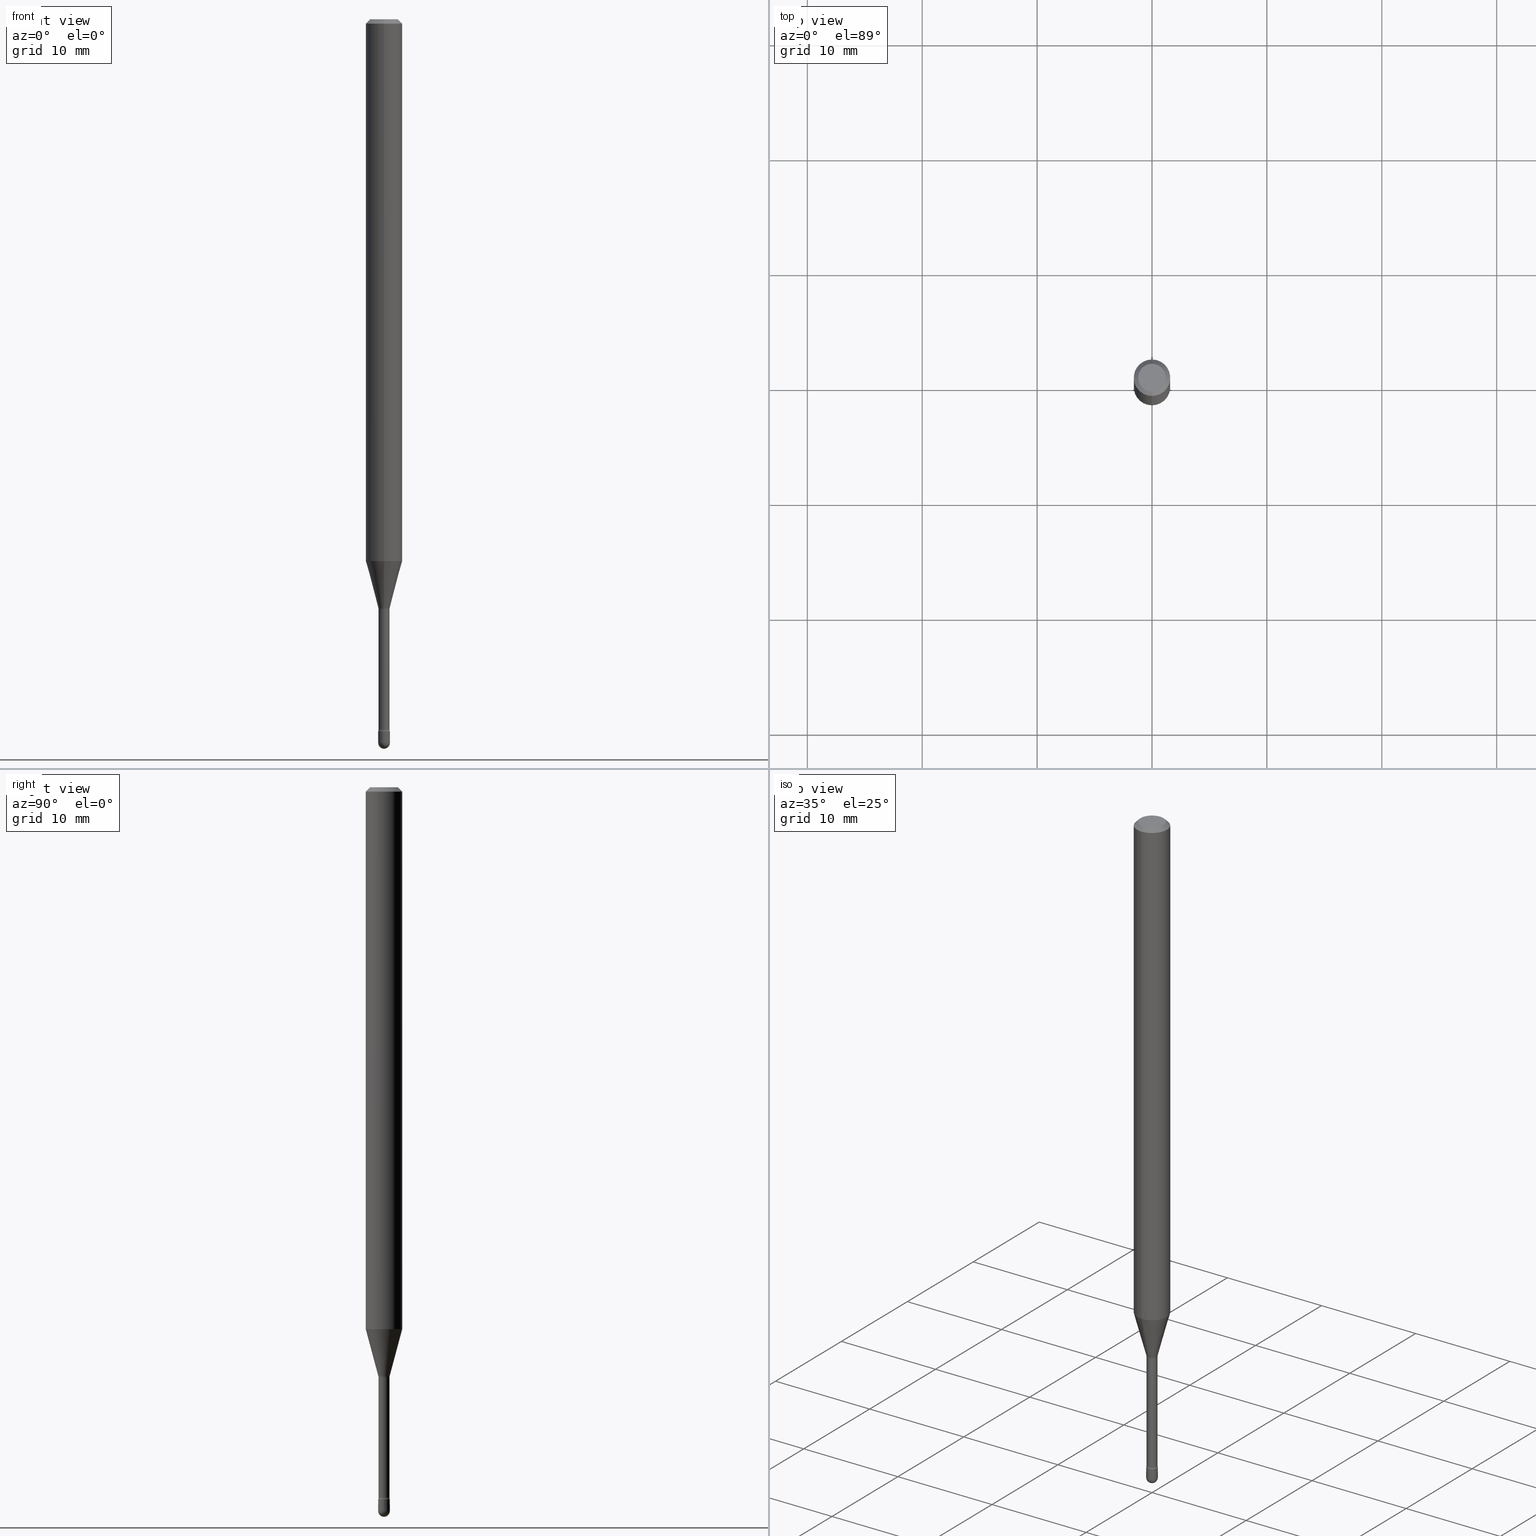
[diagram: canonical four-view strip — front | top / right | iso, engineering-drawing reading convention]
A machine part, canonical four-view strip (front | top / right | iso — engineering-drawing reading convention). The complete STEP part file that produces these views, byte-faithful:
ISO-10303-21;
HEADER;
FILE_DESCRIPTION (( 'STEP AP203' ),
    '1' );
FILE_NAME ('03893.STEP',
    '2024-04-09T21:00:05',
    ( '' ),
    ( '' ),
    'SwSTEP 2.0',
    'SolidWorks 2023',
    '' );
FILE_SCHEMA (( 'CONFIG_CONTROL_DESIGN' ));
ENDSEC;

DATA;
#1 = CARTESIAN_POINT ( 'NONE',  ( -1.312796983405020727E-16, -0.01880000000000003543, 5.437145685465631061E-16 ) ) ;
#2 = PERSON_AND_ORGANIZATION ( #332, #387 ) ;
#3 = DIRECTION ( 'NONE',  ( -2.438088387897960049E-29, 3.491481338843145188E-15, 1.000000000000000000 ) ) ;
#4 = ADVANCED_BREP_SHAPE_REPRESENTATION ( '03893', ( #277, #467, #94 ), #560 ) ;
#5 = AXIS2_PLACEMENT_3D ( 'NONE', #96, #431, #417 ) ;
#6 = CC_DESIGN_APPROVAL ( #479, ( #50 ) ) ;
#7 = DIRECTION ( 'NONE',  ( -2.445419758855719458E-29, 3.491551577410471603E-15, 1.000000000000000000 ) ) ;
#8 = EDGE_CURVE ( 'NONE', #239, #116, #395, .T. ) ;
#9 = AXIS2_PLACEMENT_3D ( 'NONE', #488, #37, #83 ) ;
#10 = CIRCLE ( 'NONE', #365, 0.01499999999999998036 ) ;
#11 = DIRECTION ( 'NONE',  ( 6.982962677686265922E-15, 1.000000000000000000, -3.483106191921935554E-15 ) ) ;
#12 = FACE_OUTER_BOUND ( 'NONE', #367, .T. ) ;
#13 = CARTESIAN_POINT ( 'NONE',  ( -2.360241385057463603E-16, -0.03380000000000706051, -2.021974787463811207 ) ) ;
#14 = EDGE_LOOP ( 'NONE', ( #97, #68, #286, #460 ) ) ;
#15 = CARTESIAN_POINT ( 'NONE',  ( 0.000000000000000000, 0.000000000000000000, 0.000000000000000000 ) ) ;
#16 = ORIENTED_EDGE ( 'NONE', *, *, #500, .T. ) ;
#17 = VECTOR ( 'NONE', #173, 39.37007874015748143 ) ;
#18 = FACE_OUTER_BOUND ( 'NONE', #56, .T. ) ;
#19 = DIRECTION ( 'NONE',  ( 1.000000000000000000, -6.982962677686284065E-15, 0.000000000000000000 ) ) ;
#20 = ORIENTED_EDGE ( 'NONE', *, *, #393, .T. ) ;
#21 = DIRECTION ( 'NONE',  ( -2.445419758855719458E-29, 3.491551577410471603E-15, 1.000000000000000000 ) ) ;
#22 = ORIENTED_EDGE ( 'NONE', *, *, #175, .T. ) ;
#23 = CONICAL_SURFACE ( 'NONE', #348, 0.01931111260566398605, 0.2617993877991497964 ) ;
#24 = AXIS2_PLACEMENT_3D ( 'NONE', #157, #65, #153 ) ;
#25 = ORIENTED_EDGE ( 'NONE', *, *, #257, .T. ) ;
#26 = LINE ( 'NONE', #1, #49 ) ;
#27 = DIRECTION ( 'NONE',  ( -6.982962677686265922E-15, -1.000000000000000000, 3.483106191921935554E-15 ) ) ;
#28 = CC_DESIGN_PERSON_AND_ORGANIZATION_ASSIGNMENT ( #2, #474, ( #50 ) ) ;
#29 = DIRECTION ( 'NONE',  ( -6.982962677686265922E-15, -1.000000000000000000, 0.000000000000000000 ) ) ;
#30 = DESIGN_CONTEXT ( 'detailed design', #309, 'design' ) ;
#31 = APPROVAL_STATUS ( 'not_yet_approved' ) ;
#32 = DIRECTION ( 'NONE',  ( -6.982962677686265922E-15, -1.000000000000000000, 3.491551577410471603E-15 ) ) ;
#33 = VECTOR ( 'NONE', #41, 39.37007874015748143 ) ;
#34 = APPROVAL_PERSON_ORGANIZATION ( #523, #479, #105 ) ;
#35 = APPROVAL_DATE_TIME ( #64, #537 ) ;
#36 = VERTEX_POINT ( 'NONE', #347 ) ;
#37 = DIRECTION ( 'NONE',  ( -1.000000000000000000, 6.982962677686265133E-15, -4.883557194083112340E-29 ) ) ;
#38 = CARTESIAN_POINT ( 'NONE',  ( 0.000000000000000000, 0.000000000000000000, 0.000000000000000000 ) ) ;
#39 = PERSON_AND_ORGANIZATION ( #332, #387 ) ;
#40 = EDGE_LOOP ( 'NONE', ( #236, #201, #238, #378 ) ) ;
#41 = DIRECTION ( 'NONE',  ( -4.851104656540964275E-15, -0.7071067811865500152, -0.7071067811865450192 ) ) ;
#42 = VERTEX_POINT ( 'NONE', #203 ) ;
#43 = FACE_OUTER_BOUND ( 'NONE', #287, .T. ) ;
#44 = AXIS2_PLACEMENT_3D ( 'NONE', #450, #178, #495 ) ;
#45 = CARTESIAN_POINT ( 'NONE',  ( 2.401634446869632912E-16, 0.03379999999999293986, -2.021974787463811207 ) ) ;
#46 =( LENGTH_UNIT ( ) NAMED_UNIT ( * ) SI_UNIT ( $, .METRE. ) );
#47 = CARTESIAN_POINT ( 'NONE',  ( 3.668129638283599349E-31, -5.237327366115736641E-17, -0.01500000000000008271 ) ) ;
#48 = DIRECTION ( 'NONE',  ( -2.445419758855719458E-29, 3.491551577410471603E-15, 1.000000000000000000 ) ) ;
#49 = VECTOR ( 'NONE', #434, 39.37007874015748143 ) ;
#50 = PRODUCT_DEFINITION_FORMATION_WITH_SPECIFIED_SOURCE ( 'ANY', '', #390, .NOT_KNOWN. ) ;
#51 = CARTESIAN_POINT ( 'NONE',  ( 3.668129638283599349E-31, -5.237327366115736641E-17, -0.01500000000000008271 ) ) ;
#52 = DIRECTION ( 'NONE',  ( -6.982962677686265922E-15, -1.000000000000000000, 0.000000000000000000 ) ) ;
#53 = DIRECTION ( 'NONE',  ( -6.982962677686265922E-15, -1.000000000000000000, 3.491551577410471603E-15 ) ) ;
#54 = CARTESIAN_POINT ( 'NONE',  ( -1.312796983404523252E-16, -0.01880000000000705759, -2.021974787463811207 ) ) ;
#55 = EDGE_CURVE ( 'NONE', #194, #42, #273, .T. ) ;
#56 = EDGE_LOOP ( 'NONE', ( #546, #16, #443, #426, #565 ) ) ;
#57 = AXIS2_PLACEMENT_3D ( 'NONE', #389, #563, #167 ) ;
#58 = ADVANCED_FACE ( 'NONE', ( #69 ), #373, .F. ) ;
#59 = EDGE_LOOP ( 'NONE', ( #383, #468, #160, #430 ) ) ;
#60 = DIRECTION ( 'NONE',  ( -2.445419758855719458E-29, 3.491551577410471603E-15, 1.000000000000000000 ) ) ;
#61 = PRODUCT_DEFINITION ( 'UNKNOWN', '', #50, #30 ) ;
#62 = CARTESIAN_POINT ( 'NONE',  ( 5.952448138129277157E-29, -8.498859801420915443E-15, -2.434121224617320944 ) ) ;
#63 = ORIENTED_EDGE ( 'NONE', *, *, #180, .F. ) ;
#64 = DATE_AND_TIME ( #114, #462 ) ;
#65 = DIRECTION ( 'NONE',  ( -2.445419758855719458E-29, 3.491551577410471603E-15, 1.000000000000000000 ) ) ;
#66 = LOCAL_TIME ( 17, 0, 5.000000000000000000, #155 ) ;
#67 = CARTESIAN_POINT ( 'NONE',  ( -1.169113584055446105E-44, 1.669184350826100908E-30, 4.780733988912460139E-16 ) ) ;
#68 = ORIENTED_EDGE ( 'NONE', *, *, #231, .F. ) ;
#69 = FACE_OUTER_BOUND ( 'NONE', #59, .T. ) ;
#70 = SHAPE_DEFINITION_REPRESENTATION ( #256, #4 ) ;
#71 = ORIENTED_EDGE ( 'NONE', *, *, #281, .F. ) ;
#72 = DIRECTION ( 'NONE',  ( -6.982962677686265922E-15, -1.000000000000000000, 0.000000000000000000 ) ) ;
#73 = DIRECTION ( 'NONE',  ( 1.000000000000000000, 0.000000000000000000, 0.000000000000000000 ) ) ;
#74 = CARTESIAN_POINT ( 'NONE',  ( 6.064762639339139522E-29, -8.658873720331001644E-15, -2.480000000000000426 ) ) ;
#75 = ORIENTED_EDGE ( 'NONE', *, *, #146, .T. ) ;
#76 = DIRECTION ( 'NONE',  ( 6.982962677686265133E-15, 1.000000000000000000, 0.000000000000000000 ) ) ;
#77 = AXIS2_PLACEMENT_3D ( 'NONE', #45, #490, #266 ) ;
#78 = CC_DESIGN_APPROVAL ( #537, ( #61 ) ) ;
#79 = SECURITY_CLASSIFICATION_LEVEL ( 'unclassified' ) ;
#80 = VERTEX_POINT ( 'NONE', #222 ) ;
#81 = PLANE ( 'NONE',  #399 ) ;
#82 = ORIENTED_EDGE ( 'NONE', *, *, #518, .T. ) ;
#83 = DIRECTION ( 'NONE',  ( 6.982962677686265133E-15, 1.000000000000000000, 0.000000000000000000 ) ) ;
#84 = EDGE_CURVE ( 'NONE', #562, #553, #452, .T. ) ;
#85 = CYLINDRICAL_SURFACE ( 'NONE', #253, 0.06250000000000000000 ) ;
#86 = AXIS2_PLACEMENT_3D ( 'NONE', #195, #250, #32 ) ;
#87 = AXIS2_PLACEMENT_3D ( 'NONE', #229, #368, #270 ) ;
#88 = CARTESIAN_POINT ( 'NONE',  ( 6.114527181752021441E-29, -8.727478700308718159E-15, -2.500000000000000000 ) ) ;
#89 = DIRECTION ( 'NONE',  ( -6.982962677686265922E-15, -1.000000000000000000, 0.000000000000000000 ) ) ;
#90 = ADVANCED_FACE ( 'NONE', ( #12 ), #23, .T. ) ;
#91 = ORIENTED_EDGE ( 'NONE', *, *, #8, .F. ) ;
#92 = CARTESIAN_POINT ( 'NONE',  ( -0.02000000000000000042, -8.446935546402118183E-15, -2.440000000000000391 ) ) ;
#93 = DIRECTION ( 'NONE',  ( -2.445419758855719458E-29, 3.491551577410471603E-15, 1.000000000000000000 ) ) ;
#94 = AXIS2_PLACEMENT_3D ( 'NONE', #428, #521, #73 ) ;
#95 = CARTESIAN_POINT ( 'NONE',  ( 4.944676269635571097E-29, -7.059687238041231398E-15, -2.021974787463811207 ) ) ;
#96 = CARTESIAN_POINT ( 'NONE',  ( 4.935083279069169162E-29, -7.046274057975598394E-15, -2.018092501787273285 ) ) ;
#97 = ORIENTED_EDGE ( 'NONE', *, *, #353, .F. ) ;
#98 = ADVANCED_FACE ( 'NONE', ( #225 ), #351, .T. ) ;
#99 = CIRCLE ( 'NONE', #514, 0.02000000000000000042 ) ;
#100 = LOCAL_TIME ( 17, 0, 5.000000000000000000, #123 ) ;
#101 = CARTESIAN_POINT ( 'NONE',  ( 4.440892098501077785E-16, 0.06249999999999350520, -1.856909379709240637 ) ) ;
#102 = ORIENTED_EDGE ( 'NONE', *, *, #441, .T. ) ;
#103 = ORIENTED_EDGE ( 'NONE', *, *, #143, .F. ) ;
#104 = FACE_OUTER_BOUND ( 'NONE', #385, .T. ) ;
#105 = APPROVAL_ROLE ( '' ) ;
#106 = DIRECTION ( 'NONE',  ( -7.105427357601000281E-15, -1.000000000000000000, 0.000000000000000000 ) ) ;
#107 = DIRECTION ( 'NONE',  ( -2.445419758855719458E-29, 3.491551577410471603E-15, 1.000000000000000000 ) ) ;
#108 = APPROVAL_DATE_TIME ( #511, #122 ) ;
#109 = AXIS2_PLACEMENT_3D ( 'NONE', #398, #107, #473 ) ;
#110 = CIRCLE ( 'NONE', #558, 0.06250000000000000000 ) ;
#111 = AXIS2_PLACEMENT_3D ( 'NONE', #509, #154, #19 ) ;
#112 = LOCAL_TIME ( 17, 0, 5.000000000000000000, #477 ) ;
#113 = DIRECTION ( 'NONE',  ( -1.000000000000000000, 7.105427357601001070E-15, -4.926315508542082329E-29 ) ) ;
#114 = CALENDAR_DATE ( 2024, 9, 4 ) ;
#115 = DIRECTION ( 'NONE',  ( -1.807323732225326984E-15, -0.2588190451025177419, 0.9659258262890690894 ) ) ;
#116 = VERTEX_POINT ( 'NONE', #120 ) ;
#117 = MECHANICAL_CONTEXT ( 'NONE', #280, 'mechanical' ) ;
#118 = ADVANCED_FACE ( 'NONE', ( #300 ), #440, .T. ) ;
#119 = DIRECTION ( 'NONE',  ( -6.982962677686265922E-15, -1.000000000000000000, 3.491551577410471208E-15 ) ) ;
#120 = CARTESIAN_POINT ( 'NONE',  ( 4.440892098501082715E-16, 0.06249999999999995143, -0.01500000000000030129 ) ) ;
#121 = ORIENTED_EDGE ( 'NONE', *, *, #271, .T. ) ;
#122 = APPROVAL ( #554, 'UNSPECIFIED' ) ;
#123 = COORDINATED_UNIVERSAL_TIME_OFFSET ( 5, 0, .BEHIND. ) ;
#124 = VERTEX_POINT ( 'NONE', #405 ) ;
#125 = AXIS2_PLACEMENT_3D ( 'NONE', #137, #48, #314 ) ;
#126 = LINE ( 'NONE', #213, #33 ) ;
#127 = CIRCLE ( 'NONE', #304, 0.02000000000000000042 ) ;
#128 = ORIENTED_EDGE ( 'NONE', *, *, #55, .F. ) ;
#129 = CARTESIAN_POINT ( 'NONE',  ( 5.966943887091733341E-29, -8.519214466777275048E-15, -2.440000000000000391 ) ) ;
#130 = EDGE_CURVE ( 'NONE', #42, #194, #142, .T. ) ;
#131 = FACE_OUTER_BOUND ( 'NONE', #156, .T. ) ;
#132 = ADVANCED_FACE ( 'NONE', ( #158 ), #193, .T. ) ;
#133 = DIRECTION ( 'NONE',  ( -6.982962677686265922E-15, -1.000000000000000000, 4.370956789862821150E-15 ) ) ;
#134 = AXIS2_PLACEMENT_3D ( 'NONE', #74, #481, #76 ) ;
#135 = APPROVAL_PERSON_ORGANIZATION ( #210, #537, #437 ) ;
#136 = DIRECTION ( 'NONE',  ( 1.000000000000000000, -6.982962677686235945E-15, 0.000000000000000000 ) ) ;
#137 = CARTESIAN_POINT ( 'NONE',  ( 5.952567525274821981E-29, -8.498688832233400382E-15, -2.434121224617320944 ) ) ;
#138 = LINE ( 'NONE', #227, #515 ) ;
#139 = CARTESIAN_POINT ( 'NONE',  ( 4.935083279069169162E-29, -7.046274057975598394E-15, -2.018092501787273285 ) ) ;
#140 = PRODUCT_RELATED_PRODUCT_CATEGORY ( 'detail', '', ( #390 ) ) ;
#141 = CARTESIAN_POINT ( 'NONE',  ( 5.952567525274821981E-29, -8.498688832233400382E-15, -2.434121224617320944 ) ) ;
#142 = CIRCLE ( 'NONE', #5, 0.01931111260566398605 ) ;
#143 = EDGE_CURVE ( 'NONE', #375, #545, #415, .T. ) ;
#144 = DIRECTION ( 'NONE',  ( 2.445419758855719458E-29, -3.491551577410471603E-15, -1.000000000000000000 ) ) ;
#145 = EDGE_LOOP ( 'NONE', ( #22, #524 ) ) ;
#146 = EDGE_CURVE ( 'NONE', #543, #411, #364, .T. ) ;
#147 = CARTESIAN_POINT ( 'NONE',  ( 0.02000000000000000042, -1.396592535537253145E-16, 9.752353551591871936E-31 ) ) ;
#148 = CC_DESIGN_DATE_AND_TIME_ASSIGNMENT ( #391, #564, ( #150 ) ) ;
#149 = DIRECTION ( 'NONE',  ( -2.445419758855719458E-29, 3.491551577410471603E-15, 1.000000000000000000 ) ) ;
#150 = SECURITY_CLASSIFICATION ( '', '', #79 ) ;
#151 = CARTESIAN_POINT ( 'NONE',  ( 6.064762639339139522E-29, -8.658873720331001644E-15, -2.480000000000000426 ) ) ;
#152 = VERTEX_POINT ( 'NONE', #337 ) ;
#153 = DIRECTION ( 'NONE',  ( -6.982962677686267499E-15, -1.000000000000000000, 3.491551577410473180E-15 ) ) ;
#154 = DIRECTION ( 'NONE',  ( -2.445468806185136597E-29, 3.491481338843145583E-15, 1.000000000000000000 ) ) ;
#155 = COORDINATED_UNIVERSAL_TIME_OFFSET ( 5, 0, .BEHIND. ) ;
#156 = EDGE_LOOP ( 'NONE', ( #465, #381, #421, #418 ) ) ;
#157 = CARTESIAN_POINT ( 'NONE',  ( -1.169113584055446105E-44, 1.669184350826100908E-30, 4.780733988912460139E-16 ) ) ;
#158 = FACE_OUTER_BOUND ( 'NONE', #198, .T. ) ;
#159 =( NAMED_UNIT ( * ) PLANE_ANGLE_UNIT ( ) SI_UNIT ( $, .RADIAN. ) );
#160 = ORIENTED_EDGE ( 'NONE', *, *, #526, .T. ) ;
#161 = CIRCLE ( 'NONE', #174, 0.01880000000000007360 ) ;
#162 = TOROIDAL_SURFACE ( 'NONE', #491, 0.03380000000000000365, 0.01500000000000002373 ) ;
#163 = DIRECTION ( 'NONE',  ( -2.445419758855719458E-29, 3.491551577410471603E-15, 1.000000000000000000 ) ) ;
#164 = VERTEX_POINT ( 'NONE', #552 ) ;
#165 = PERSON_AND_ORGANIZATION ( #332, #387 ) ;
#166 = EDGE_CURVE ( 'NONE', #116, #36, #374, .T. ) ;
#167 = DIRECTION ( 'NONE',  ( 6.982962677686265922E-15, 1.000000000000000000, 0.000000000000000000 ) ) ;
#168 =( NAMED_UNIT ( * ) SI_UNIT ( $, .STERADIAN. ) SOLID_ANGLE_UNIT ( ) );
#169 = ORIENTED_EDGE ( 'NONE', *, *, #406, .T. ) ;
#170 = DIRECTION ( 'NONE',  ( -2.445468806185136597E-29, 3.491481338843145583E-15, 1.000000000000000000 ) ) ;
#171 = EDGE_CURVE ( 'NONE', #559, #322, #161, .T. ) ;
#172 = ORIENTED_EDGE ( 'NONE', *, *, #271, .F. ) ;
#173 = DIRECTION ( 'NONE',  ( -2.445419758855719458E-29, 3.491551577410471603E-15, 1.000000000000000000 ) ) ;
#174 = AXIS2_PLACEMENT_3D ( 'NONE', #62, #376, #475 ) ;
#175 = EDGE_CURVE ( 'NONE', #124, #464, #435, .T. ) ;
#176 = DIRECTION ( 'NONE',  ( -1.000000000000000000, 6.982962677686265922E-15, -4.883557194083112340E-29 ) ) ;
#177 = FACE_OUTER_BOUND ( 'NONE', #145, .T. ) ;
#178 = DIRECTION ( 'NONE',  ( -2.445419758855719178E-29, 3.491551577410471603E-15, 1.000000000000000000 ) ) ;
#179 = AXIS2_PLACEMENT_3D ( 'NONE', #197, #113, #106 ) ;
#180 = EDGE_CURVE ( 'NONE', #239, #212, #185, .T. ) ;
#181 = DIRECTION ( 'NONE',  ( -6.982962677686265922E-15, -1.000000000000000000, 0.000000000000000000 ) ) ;
#182 = CARTESIAN_POINT ( 'NONE',  ( 1.335820343229585471E-16, 0.01879999999999294041, -2.021974787463811207 ) ) ;
#183 = DIRECTION ( 'NONE',  ( -1.000000000000000000, 6.982962677686265922E-15, -4.883557194083112340E-29 ) ) ;
#184 = EDGE_CURVE ( 'NONE', #42, #212, #202, .T. ) ;
#185 = CIRCLE ( 'NONE', #447, 0.06250000000000000000 ) ;
#186 = VERTEX_POINT ( 'NONE', #463 ) ;
#187 = AXIS2_PLACEMENT_3D ( 'NONE', #15, #361, #272 ) ;
#188 = CARTESIAN_POINT ( 'NONE',  ( 5.952448138129277157E-29, -8.498859801420915443E-15, -2.434121224617320944 ) ) ;
#189 = EDGE_LOOP ( 'NONE', ( #487, #506, #82, #102, #71 ) ) ;
#190 = EDGE_CURVE ( 'NONE', #423, #545, #533, .T. ) ;
#191 = DIRECTION ( 'NONE',  ( 1.000000000000000000, -6.982962677686235945E-15, 0.000000000000000000 ) ) ;
#192 = AXIS2_PLACEMENT_3D ( 'NONE', #494, #409, #89 ) ;
#193 = CONICAL_SURFACE ( 'NONE', #461, 0.01931111260566398605, 0.2617993877991497964 ) ;
#194 = VERTEX_POINT ( 'NONE', #234 ) ;
#195 = CARTESIAN_POINT ( 'NONE',  ( 4.944676269635571097E-29, -7.059687238041231398E-15, -2.021974787463811207 ) ) ;
#196 = APPLICATION_PROTOCOL_DEFINITION ( 'international standard', 'config_control_design', 1994, #280 ) ;
#197 = CARTESIAN_POINT ( 'NONE',  ( 6.064762639339139522E-29, -8.658873720331001644E-15, -2.480000000000000426 ) ) ;
#198 = EDGE_LOOP ( 'NONE', ( #403, #344, #540, #63 ) ) ;
#199 = ORIENTED_EDGE ( 'NONE', *, *, #84, .F. ) ;
#200 = CALENDAR_DATE ( 2024, 9, 4 ) ;
#201 = ORIENTED_EDGE ( 'NONE', *, *, #130, .F. ) ;
#202 = LINE ( 'NONE', #557, #274 ) ;
#203 = CARTESIAN_POINT ( 'NONE',  ( -1.348487785898990376E-16, -0.01931111260567103249, -2.018092501787273285 ) ) ;
#204 = COORDINATED_UNIVERSAL_TIME_OFFSET ( 5, 0, .BEHIND. ) ;
#205 = CIRCLE ( 'NONE', #264, 0.04749999999999999362 ) ;
#206 = LOCAL_TIME ( 17, 0, 5.000000000000000000, #204 ) ;
#207 = DIRECTION ( 'NONE',  ( 1.000000000000000000, -6.982962677686284065E-15, 0.000000000000000000 ) ) ;
#208 = CALENDAR_DATE ( 2024, 9, 4 ) ;
#209 = EDGE_LOOP ( 'NONE', ( #283, #240, #476, #211 ) ) ;
#210 = PERSON_AND_ORGANIZATION ( #332, #387 ) ;
#211 = ORIENTED_EDGE ( 'NONE', *, *, #294, .F. ) ;
#212 = VERTEX_POINT ( 'NONE', #380 ) ;
#213 = CARTESIAN_POINT ( 'NONE',  ( -4.287811248607203282E-16, -0.06250000000000005551, -0.01499999999999986587 ) ) ;
#214 = ORIENTED_EDGE ( 'NONE', *, *, #265, .F. ) ;
#215 = CARTESIAN_POINT ( 'NONE',  ( 5.966943887091733341E-29, -8.519214466777275048E-15, -2.440000000000000391 ) ) ;
#216 = AXIS2_PLACEMENT_3D ( 'NONE', #442, #176, #311 ) ;
#217 = CARTESIAN_POINT ( 'NONE',  ( 1.421085471520795991E-16, 0.01999999999999146905, -2.440000000000000391 ) ) ;
#218 = PLANE ( 'NONE',  #44 ) ;
#219 = DIRECTION ( 'NONE',  ( 1.000000000000000000, -6.982962677686265922E-15, 4.876176775795935793E-29 ) ) ;
#220 = CC_DESIGN_PERSON_AND_ORGANIZATION_ASSIGNMENT ( #379, #342, ( #150 ) ) ;
#221 = FACE_OUTER_BOUND ( 'NONE', #40, .T. ) ;
#222 = CARTESIAN_POINT ( 'NONE',  ( 1.396592535537856130E-16, 0.01999999999999128517, -2.480000000000000426 ) ) ;
#223 = AXIS2_PLACEMENT_3D ( 'NONE', #372, #549, #72 ) ;
#224 = DIRECTION ( 'NONE',  ( -2.445419758855719458E-29, 3.491551577410471603E-15, 1.000000000000000000 ) ) ;
#225 = FACE_OUTER_BOUND ( 'NONE', #566, .T. ) ;
#226 = EDGE_CURVE ( 'NONE', #36, #116, #110, .T. ) ;
#227 = CARTESIAN_POINT ( 'NONE',  ( 1.335820343228990867E-16, 0.01880000000000003543, 4.124322292359290696E-16 ) ) ;
#228 = ORIENTED_EDGE ( 'NONE', *, *, #345, .T. ) ;
#229 = CARTESIAN_POINT ( 'NONE',  ( 6.064762639339139522E-29, -8.658873720331001644E-15, -2.480000000000000426 ) ) ;
#230 = AXIS2_PLACEMENT_3D ( 'NONE', #370, #149, #324 ) ;
#231 = EDGE_CURVE ( 'NONE', #152, #164, #472, .T. ) ;
#232 = ORIENTED_EDGE ( 'NONE', *, *, #503, .T. ) ;
#233 = TOROIDAL_SURFACE ( 'NONE', #416, 0.03380000000000005222, 0.01499999999999997689 ) ;
#234 = CARTESIAN_POINT ( 'NONE',  ( 2.906514588320780024E-16, 0.01931111260565693613, -2.018092501787273285 ) ) ;
#235 = EDGE_CURVE ( 'NONE', #80, #375, #99, .T. ) ;
#236 = ORIENTED_EDGE ( 'NONE', *, *, #406, .F. ) ;
#237 = DIRECTION ( 'NONE',  ( -6.982962677686265922E-15, -1.000000000000000000, 3.491551577410471208E-15 ) ) ;
#238 = ORIENTED_EDGE ( 'NONE', *, *, #539, .T. ) ;
#239 = VERTEX_POINT ( 'NONE', #101 ) ;
#240 = ORIENTED_EDGE ( 'NONE', *, *, #8, .T. ) ;
#241 = DIRECTION ( 'NONE',  ( -2.445419758855719458E-29, 3.491551577410471603E-15, 1.000000000000000000 ) ) ;
#242 = AXIS2_PLACEMENT_3D ( 'NONE', #67, #60, #237 ) ;
#243 = CALENDAR_DATE ( 2024, 9, 4 ) ;
#244 = CONICAL_SURFACE ( 'NONE', #516, 0.06250000000000000000, 0.7853981633974483900 ) ;
#245 = ADVANCED_FACE ( 'NONE', ( #104 ), #384, .T. ) ;
#246 = CARTESIAN_POINT ( 'NONE',  ( 4.540922887545493413E-29, -6.483494873832099196E-15, -1.856909379709240415 ) ) ;
#247 = EDGE_LOOP ( 'NONE', ( #261, #471 ) ) ;
#248 = ADVANCED_FACE ( 'NONE', ( #466 ), #544, .T. ) ;
#249 = DIRECTION ( 'NONE',  ( -6.982962677686266711E-15, -1.000000000000000000, 3.491551577410471997E-15 ) ) ;
#250 = DIRECTION ( 'NONE',  ( -2.445419758855719458E-29, 3.491551577410471603E-15, 1.000000000000000000 ) ) ;
#251 = ORIENTED_EDGE ( 'NONE', *, *, #503, .F. ) ;
#252 = ORIENTED_EDGE ( 'NONE', *, *, #226, .T. ) ;
#253 = AXIS2_PLACEMENT_3D ( 'NONE', #299, #7, #119 ) ;
#254 = CONICAL_SURFACE ( 'NONE', #427, 0.06250000000000000000, 0.7853981633974483900 ) ;
#255 = DIRECTION ( 'NONE',  ( 1.000000000000000000, -6.982962677686265922E-15, 4.876176775795935793E-29 ) ) ;
#256 = PRODUCT_DEFINITION_SHAPE ( 'NONE', 'NONE',  #61 ) ;
#257 = EDGE_CURVE ( 'NONE', #322, #559, #446, .T. ) ;
#258 = ORIENTED_EDGE ( 'NONE', *, *, #190, .T. ) ;
#259 = EDGE_LOOP ( 'NONE', ( #334, #392 ) ) ;
#260 = CARTESIAN_POINT ( 'NONE',  ( -1.312796983404428095E-16, -0.01880000000000857374, -2.434121224617320944 ) ) ;
#261 = ORIENTED_EDGE ( 'NONE', *, *, #146, .F. ) ;
#262 = LINE ( 'NONE', #354, #325 ) ;
#263 = CLOSED_SHELL ( 'NONE', ( #269, #98, #58, #451, #248, #90, #132, #323, #493, #301, #444, #556, #245, #458 ) ) ;
#264 = AXIS2_PLACEMENT_3D ( 'NONE', #340, #241, #519 ) ;
#265 = EDGE_CURVE ( 'NONE', #164, #152, #205, .T. ) ;
#266 = DIRECTION ( 'NONE',  ( 7.105427357601000281E-15, 1.000000000000000000, 0.000000000000000000 ) ) ;
#267 = AXIS2_PLACEMENT_3D ( 'NONE', #13, #183, #498 ) ;
#268 = DIRECTION ( 'NONE',  ( 1.000000000000000000, -7.105427357601001070E-15, 4.926316368716448891E-29 ) ) ;
#269 = ADVANCED_FACE ( 'NONE', ( #424 ), #349, .F. ) ;
#270 = DIRECTION ( 'NONE',  ( 1.000000000000000000, -6.982962677686235945E-15, 0.000000000000000000 ) ) ;
#271 = EDGE_CURVE ( 'NONE', #322, #562, #26, .T. ) ;
#272 = DIRECTION ( 'NONE',  ( 1.000000000000000000, -6.982962677686265922E-15, 4.876176775795935793E-29 ) ) ;
#273 = CIRCLE ( 'NONE', #109, 0.01931111260566398605 ) ;
#274 = VECTOR ( 'NONE', #115, 39.37007874015748143 ) ;
#275 = DIMENSIONAL_EXPONENTS ( 1.000000000000000000, 0.000000000000000000, 0.000000000000000000, 0.000000000000000000, 0.000000000000000000, 0.000000000000000000, 0.000000000000000000 ) ;
#276 = DIRECTION ( 'NONE',  ( -6.982962677686265922E-15, -1.000000000000000000, 3.491551577410471603E-15 ) ) ;
#277 = MANIFOLD_SOLID_BREP ( 'Body-Move/Copy2[1]', #512 ) ;
#278 = EDGE_LOOP ( 'NONE', ( #485, #258, #103, #507 ) ) ;
#279 = CARTESIAN_POINT ( 'NONE',  ( -0.02000000000000000042, 1.421085471520200401E-16, -9.837870180509812545E-31 ) ) ;
#280 = APPLICATION_CONTEXT ( 'configuration controlled 3d designs of mechanical parts and assemblies' ) ;
#281 = EDGE_CURVE ( 'NONE', #464, #124, #310, .T. ) ;
#282 = CIRCLE ( 'NONE', #548, 0.01879999999999999727 ) ;
#283 = ORIENTED_EDGE ( 'NONE', *, *, #422, .T. ) ;
#284 = DIRECTION ( 'NONE',  ( -6.982962677686267499E-15, -1.000000000000000000, 3.491551577410473180E-15 ) ) ;
#285 = EDGE_CURVE ( 'NONE', #423, #80, #453, .T. ) ;
#286 = ORIENTED_EDGE ( 'NONE', *, *, #335, .T. ) ;
#287 = EDGE_LOOP ( 'NONE', ( #91, #339, #489, #529 ) ) ;
#288 = ORIENTED_EDGE ( 'NONE', *, *, #257, .F. ) ;
#289 = CARTESIAN_POINT ( 'NONE',  ( -1.169113584055446105E-44, 1.669184350826100908E-30, 4.780733988912460139E-16 ) ) ;
#290 = PERSON_AND_ORGANIZATION_ROLE ( 'creator' ) ;
#291 = CARTESIAN_POINT ( 'NONE',  ( 3.668129638283599349E-31, -5.237327366115736641E-17, -0.01500000000000008271 ) ) ;
#292 = AXIS2_PLACEMENT_3D ( 'NONE', #38, #360, #219 ) ;
#293 = PERSON_AND_ORGANIZATION_ROLE ( 'creator' ) ;
#294 = EDGE_CURVE ( 'NONE', #212, #36, #343, .T. ) ;
#295 = DIRECTION ( 'NONE',  ( -2.445419758855719458E-29, 3.491551577410471603E-15, 1.000000000000000000 ) ) ;
#296 =( CONVERSION_BASED_UNIT ( 'INCH', #469 ) LENGTH_UNIT ( ) NAMED_UNIT ( #275 ) );
#297 = EDGE_LOOP ( 'NONE', ( #214, #320, #252, #520 ) ) ;
#298 = PERSON_AND_ORGANIZATION_ROLE ( 'design_owner' ) ;
#299 = CARTESIAN_POINT ( 'NONE',  ( -1.169113584055446105E-44, 1.669184350826100908E-30, 4.780733988912460139E-16 ) ) ;
#300 = FACE_OUTER_BOUND ( 'NONE', #189, .T. ) ;
#301 = ADVANCED_FACE ( 'NONE', ( #522 ), #81, .F. ) ;
#302 = APPROVAL_ROLE ( '' ) ;
#303 = CIRCLE ( 'NONE', #527, 0.06250000000000000000 ) ;
#304 = AXIS2_PLACEMENT_3D ( 'NONE', #497, #449, #181 ) ;
#305 = DIRECTION ( 'NONE',  ( -6.982962677686265922E-15, -1.000000000000000000, 0.000000000000000000 ) ) ;
#306 = CARTESIAN_POINT ( 'NONE',  ( -0.02000000000000000042, -8.446935546402118183E-15, -2.480000000000000426 ) ) ;
#307 = ORIENTED_EDGE ( 'NONE', *, *, #366, .F. ) ;
#308 = FACE_OUTER_BOUND ( 'NONE', #278, .T. ) ;
#309 = APPLICATION_CONTEXT ( 'configuration controlled 3d designs of mechanical parts and assemblies' ) ;
#310 = CIRCLE ( 'NONE', #502, 0.02000000000000000042 ) ;
#311 = DIRECTION ( 'NONE',  ( -6.982962677686267499E-15, -1.000000000000000000, 0.000000000000000000 ) ) ;
#312 = AXIS2_PLACEMENT_3D ( 'NONE', #412, #319, #136 ) ;
#313 = CARTESIAN_POINT ( 'NONE',  ( 1.378452907375191717E-16, 0.01879999999999157692, -2.434121224617320944 ) ) ;
#314 = DIRECTION ( 'NONE',  ( -6.982962677686265922E-15, -1.000000000000000000, 3.491551577410471603E-15 ) ) ;
#315 = FACE_OUTER_BOUND ( 'NONE', #297, .T. ) ;
#316 = DIRECTION ( 'NONE',  ( -2.445468806185136877E-29, 3.491481338843145188E-15, 1.000000000000000000 ) ) ;
#317 = AXIS2_PLACEMENT_3D ( 'NONE', #327, #295, #249 ) ;
#318 = VECTOR ( 'NONE', #316, 39.37007874015748143 ) ;
#319 = DIRECTION ( 'NONE',  ( -2.445468806185136597E-29, 3.491481338843145583E-15, 1.000000000000000000 ) ) ;
#320 = ORIENTED_EDGE ( 'NONE', *, *, #353, .T. ) ;
#321 = DATE_TIME_ROLE ( 'creation_date' ) ;
#322 = VERTEX_POINT ( 'NONE', #260 ) ;
#323 = ADVANCED_FACE ( 'NONE', ( #43 ), #85, .T. ) ;
#324 = DIRECTION ( 'NONE',  ( -6.982962677686265922E-15, -1.000000000000000000, 3.483106191921935554E-15 ) ) ;
#325 = VECTOR ( 'NONE', #445, 39.37007874015748143 ) ;
#326 = CC_DESIGN_PERSON_AND_ORGANIZATION_ASSIGNMENT ( #165, #290, ( #50 ) ) ;
#327 = CARTESIAN_POINT ( 'NONE',  ( 2.023196202588763502E-45, -2.889374605709784060E-31, -8.274369573959744376E-17 ) ) ;
#328 = CC_DESIGN_PERSON_AND_ORGANIZATION_ASSIGNMENT ( #433, #293, ( #61 ) ) ;
#329 = ORIENTED_EDGE ( 'NONE', *, *, #171, .T. ) ;
#330 = UNCERTAINTY_MEASURE_WITH_UNIT (LENGTH_MEASURE( 1.000000000000000082E-05 ), #296, 'distance_accuracy_value', 'NONE');
#331 = EDGE_LOOP ( 'NONE', ( #550, #288, #228, #75 ) ) ;
#332 = PERSON ( 'UNSPECIFIED', 'UNSPECIFIED', 'UNSPECIFIED', ('UNSPECIFIED'), ('UNSPECIFIED'), ('UNSPECIFIED') ) ;
#333 = CARTESIAN_POINT ( 'NONE',  ( 4.935083279069169162E-29, -7.046274057975598394E-15, -2.018092501787273285 ) ) ;
#334 = ORIENTED_EDGE ( 'NONE', *, *, #231, .T. ) ;
#335 = EDGE_CURVE ( 'NONE', #152, #116, #352, .T. ) ;
#336 = CALENDAR_DATE ( 2024, 9, 4 ) ;
#337 = CARTESIAN_POINT ( 'NONE',  ( 3.840629472727447874E-16, 0.04749999999999999362, -2.485923956665948360E-16 ) ) ;
#338 = AXIS2_PLACEMENT_3D ( 'NONE', #289, #163, #284 ) ;
#339 = ORIENTED_EDGE ( 'NONE', *, *, #180, .T. ) ;
#340 = CARTESIAN_POINT ( 'NONE',  ( 2.023196202588763502E-45, -2.889374605709784060E-31, -8.274369573959744376E-17 ) ) ;
#341 = ORIENTED_EDGE ( 'NONE', *, *, #539, .F. ) ;
#342 = PERSON_AND_ORGANIZATION_ROLE ( 'classification_officer' ) ;
#343 = LINE ( 'NONE', #402, #17 ) ;
#344 = ORIENTED_EDGE ( 'NONE', *, *, #55, .T. ) ;
#345 = EDGE_CURVE ( 'NONE', #322, #543, #386, .T. ) ;
#346 = CARTESIAN_POINT ( 'NONE',  ( 4.364351673553919652E-16, 0.06249999999999995143, -0.01500000000000030129 ) ) ;
#347 = CARTESIAN_POINT ( 'NONE',  ( -4.364351673553912750E-16, -0.06250000000000005551, -0.01499999999999986587 ) ) ;
#348 = AXIS2_PLACEMENT_3D ( 'NONE', #139, #93, #52 ) ;
#349 = TOROIDAL_SURFACE ( 'NONE', #86, 0.03380000000000000365, 0.01500000000000002373 ) ;
#350 = CARTESIAN_POINT ( 'NONE',  ( 3.316907271900976096E-16, 0.04749999999999999362, 3.181615164882697296E-17 ) ) ;
#351 = CYLINDRICAL_SURFACE ( 'NONE', #24, 0.01880000000000003543 ) ;
#352 = LINE ( 'NONE', #346, #496 ) ;
#353 = EDGE_CURVE ( 'NONE', #164, #36, #126, .T. ) ;
#354 = CARTESIAN_POINT ( 'NONE',  ( 1.372137078140477580E-16, 0.01931111260565693613, -2.018092501787273285 ) ) ;
#355 = AXIS2_PLACEMENT_3D ( 'NONE', #129, #3, #255 ) ;
#356 = CC_DESIGN_PERSON_AND_ORGANIZATION_ASSIGNMENT ( #480, #298, ( #390 ) ) ;
#357 = DIRECTION ( 'NONE',  ( -2.445419758855719458E-29, 3.491551577410471603E-15, 1.000000000000000000 ) ) ;
#358 = ADVANCED_FACE ( 'NONE', ( #131 ), #397, .T. ) ;
#359 = CARTESIAN_POINT ( 'NONE',  ( -1.396592535536655829E-16, -0.02000000000000850750, -2.440000000000000391 ) ) ;
#360 = DIRECTION ( 'NONE',  ( -2.445468806185136597E-29, 3.491481338843145583E-15, 1.000000000000000000 ) ) ;
#361 = DIRECTION ( 'NONE',  ( -2.445468806185136597E-29, 3.491481338843145583E-15, 1.000000000000000000 ) ) ;
#362 = VECTOR ( 'NONE', #499, 39.37007874015748143 ) ;
#363 = LINE ( 'NONE', #279, #318 ) ;
#364 = CIRCLE ( 'NONE', #223, 0.02000000000000000042 ) ;
#365 = AXIS2_PLACEMENT_3D ( 'NONE', #535, #268, #410 ) ;
#366 = EDGE_CURVE ( 'NONE', #553, #562, #282, .T. ) ;
#367 = EDGE_LOOP ( 'NONE', ( #501, #20, #419, #413 ) ) ;
#368 = DIRECTION ( 'NONE',  ( -2.445468806185136597E-29, 3.491481338843145583E-15, 1.000000000000000000 ) ) ;
#369 = ADVANCED_FACE ( 'NONE', ( #177 ), #486, .T. ) ;
#370 = CARTESIAN_POINT ( 'NONE',  ( 3.668129638283599349E-31, -5.237327366115736641E-17, -0.01500000000000008271 ) ) ;
#371 = ADVANCED_FACE ( 'NONE', ( #308 ), #439, .T. ) ;
#372 = CARTESIAN_POINT ( 'NONE',  ( 5.966824211607956196E-29, -8.519385848881551168E-15, -2.440000000000000391 ) ) ;
#373 = TOROIDAL_SURFACE ( 'NONE', #125, 0.03380000000000005222, 0.01499999999999997689 ) ;
#374 = CIRCLE ( 'NONE', #230, 0.06250000000000000000 ) ;
#375 = VERTEX_POINT ( 'NONE', #306 ) ;
#376 = DIRECTION ( 'NONE',  ( -2.445419758855719458E-29, 3.491551577410471603E-15, 1.000000000000000000 ) ) ;
#377 = CARTESIAN_POINT ( 'NONE',  ( 4.440892098500625669E-16, 0.06250000000000000000, 2.598514253030916127E-16 ) ) ;
#378 = ORIENTED_EDGE ( 'NONE', *, *, #84, .T. ) ;
#379 = PERSON_AND_ORGANIZATION ( #332, #387 ) ;
#380 = CARTESIAN_POINT ( 'NONE',  ( -4.364351673553463099E-16, -0.06250000000000649480, -1.856909379709239971 ) ) ;
#381 = ORIENTED_EDGE ( 'NONE', *, *, #285, .T. ) ;
#382 = APPROVAL_STATUS ( 'not_yet_approved' ) ;
#383 = ORIENTED_EDGE ( 'NONE', *, *, #171, .F. ) ;
#384 = CYLINDRICAL_SURFACE ( 'NONE', #338, 0.01880000000000003543 ) ;
#385 = EDGE_LOOP ( 'NONE', ( #251, #329, #121, #307 ) ) ;
#386 = CIRCLE ( 'NONE', #216, 0.01499999999999997169 ) ;
#387 = ORGANIZATION ( 'UNSPECIFIED', 'UNSPECIFIED', '' ) ;
#388 = DATE_AND_TIME ( #200, #206 ) ;
#389 = CARTESIAN_POINT ( 'NONE',  ( 6.064762639339139522E-29, -8.658873720331001644E-15, -2.480000000000000426 ) ) ;
#390 = PRODUCT ( '03893', '03893', '', ( #117 ) ) ;
#391 = DATE_AND_TIME ( #208, #100 ) ;
#392 = ORIENTED_EDGE ( 'NONE', *, *, #265, .T. ) ;
#393 = EDGE_CURVE ( 'NONE', #194, #239, #262, .T. ) ;
#394 = CARTESIAN_POINT ( 'NONE',  ( 4.540922887545493413E-29, -6.483494873832099196E-15, -1.856909379709240415 ) ) ;
#395 = LINE ( 'NONE', #377, #362 ) ;
#396 = APPLICATION_PROTOCOL_DEFINITION ( 'international standard', 'config_control_design', 1994, #309 ) ;
#397 = SPHERICAL_SURFACE ( 'NONE', #134, 0.01999999999999989286 ) ;
#398 = CARTESIAN_POINT ( 'NONE',  ( 4.935083279069169162E-29, -7.046274057975598394E-15, -2.018092501787273285 ) ) ;
#399 = AXIS2_PLACEMENT_3D ( 'NONE', #350, #525, #531 ) ;
#400 = CC_DESIGN_SECURITY_CLASSIFICATION ( #150, ( #50 ) ) ;
#401 = CARTESIAN_POINT ( 'NONE',  ( 4.944577097172097400E-29, -7.059829258653472332E-15, -2.021974787463811207 ) ) ;
#402 = CARTESIAN_POINT ( 'NONE',  ( -4.364351673553916201E-16, -0.06250000000000000000, 6.962953724794005137E-16 ) ) ;
#403 = ORIENTED_EDGE ( 'NONE', *, *, #393, .F. ) ;
#404 = DIRECTION ( 'NONE',  ( 6.982962677686265922E-15, 1.000000000000000000, -3.483106191921935554E-15 ) ) ;
#405 = CARTESIAN_POINT ( 'NONE',  ( 0.02000000000000000042, -8.658873720331001644E-15, -2.440000000000000391 ) ) ;
#406 = EDGE_CURVE ( 'NONE', #194, #553, #541, .T. ) ;
#407 = AXIS2_PLACEMENT_3D ( 'NONE', #188, #478, #420 ) ;
#408 = DIRECTION ( 'NONE',  ( -2.445468806185136877E-29, 3.491481338843145188E-15, 1.000000000000000000 ) ) ;
#409 = DIRECTION ( 'NONE',  ( -2.445419758855719458E-29, 3.491551577410471603E-15, 1.000000000000000000 ) ) ;
#410 = DIRECTION ( 'NONE',  ( 7.105427357601000281E-15, 1.000000000000000000, 0.000000000000000000 ) ) ;
#411 = VERTEX_POINT ( 'NONE', #217 ) ;
#412 = CARTESIAN_POINT ( 'NONE',  ( 6.064762639339139522E-29, -8.658873720331001644E-15, -2.480000000000000426 ) ) ;
#413 = ORIENTED_EDGE ( 'NONE', *, *, #184, .F. ) ;
#414 = LINE ( 'NONE', #147, #425 ) ;
#415 = CIRCLE ( 'NONE', #482, 0.02000000000000000042 ) ;
#416 = AXIS2_PLACEMENT_3D ( 'NONE', #141, #459, #276 ) ;
#417 = DIRECTION ( 'NONE',  ( -6.982962677686265922E-15, -1.000000000000000000, 0.000000000000000000 ) ) ;
#418 = ORIENTED_EDGE ( 'NONE', *, *, #518, .F. ) ;
#419 = ORIENTED_EDGE ( 'NONE', *, *, #422, .F. ) ;
#420 = DIRECTION ( 'NONE',  ( -6.982962677686265922E-15, -1.000000000000000000, 0.000000000000000000 ) ) ;
#421 = ORIENTED_EDGE ( 'NONE', *, *, #547, .F. ) ;
#422 = EDGE_CURVE ( 'NONE', #212, #239, #303, .T. ) ;
#423 = VERTEX_POINT ( 'NONE', #88 ) ;
#424 = FACE_OUTER_BOUND ( 'NONE', #438, .T. ) ;
#425 = VECTOR ( 'NONE', #408, 39.37007874015748143 ) ;
#426 = ORIENTED_EDGE ( 'NONE', *, *, #441, .F. ) ;
#427 = AXIS2_PLACEMENT_3D ( 'NONE', #51, #542, #11 ) ;
#428 = CARTESIAN_POINT ( 'NONE',  ( 0.000000000000000000, 0.000000000000000000, 0.000000000000000000 ) ) ;
#429 = DIRECTION ( 'NONE',  ( -2.445468806185136597E-29, 3.491481338843145583E-15, 1.000000000000000000 ) ) ;
#430 = ORIENTED_EDGE ( 'NONE', *, *, #345, .F. ) ;
#431 = DIRECTION ( 'NONE',  ( -2.445419758855719458E-29, 3.491551577410471603E-15, 1.000000000000000000 ) ) ;
#432 = DIRECTION ( 'NONE',  ( -2.445468806185136597E-29, 3.491481338843145583E-15, 1.000000000000000000 ) ) ;
#433 = PERSON_AND_ORGANIZATION ( #332, #387 ) ;
#434 = DIRECTION ( 'NONE',  ( -2.445419758855719458E-29, 3.491551577410471603E-15, 1.000000000000000000 ) ) ;
#435 = CIRCLE ( 'NONE', #111, 0.02000000000000000042 ) ;
#436 = APPROVAL_PERSON_ORGANIZATION ( #39, #122, #302 ) ;
#437 = APPROVAL_ROLE ( '' ) ;
#438 = EDGE_LOOP ( 'NONE', ( #128, #169, #551, #341 ) ) ;
#439 = SPHERICAL_SURFACE ( 'NONE', #9, 0.01999999999999989286 ) ;
#440 = CYLINDRICAL_SURFACE ( 'NONE', #292, 0.02000000000000000042 ) ;
#441 = EDGE_CURVE ( 'NONE', #186, #124, #414, .T. ) ;
#442 = CARTESIAN_POINT ( 'NONE',  ( -2.360241385057365982E-16, -0.03380000000000855237, -2.434121224617320944 ) ) ;
#443 = ORIENTED_EDGE ( 'NONE', *, *, #175, .F. ) ;
#444 = ADVANCED_FACE ( 'NONE', ( #455 ), #218, .F. ) ;
#445 = DIRECTION ( 'NONE',  ( 1.839019923739597160E-15, 0.2588190451025245142, 0.9659258262890673130 ) ) ;
#446 = CIRCLE ( 'NONE', #407, 0.01880000000000007360 ) ;
#447 = AXIS2_PLACEMENT_3D ( 'NONE', #246, #470, #513 ) ;
#448 = DIRECTION ( 'NONE',  ( 4.937700262164548042E-15, 0.7071067811865451302, -0.7071067811865499042 ) ) ;
#449 = DIRECTION ( 'NONE',  ( -2.445419758855719458E-29, 3.491551577410471603E-15, 1.000000000000000000 ) ) ;
#450 = CARTESIAN_POINT ( 'NONE',  ( 1.396592535537849721E-16, 0.01999999999999147945, -2.440000000000000391 ) ) ;
#451 = ADVANCED_FACE ( 'NONE', ( #315 ), #244, .T. ) ;
#452 = CIRCLE ( 'NONE', #192, 0.01879999999999999727 ) ;
#453 = CIRCLE ( 'NONE', #57, 0.01999999999999989286 ) ;
#454 = CC_DESIGN_DATE_AND_TIME_ASSIGNMENT ( #484, #321, ( #61 ) ) ;
#455 = FACE_OUTER_BOUND ( 'NONE', #247, .T. ) ;
#456 = ADVANCED_FACE ( 'NONE', ( #18 ), #457, .T. ) ;
#457 = CYLINDRICAL_SURFACE ( 'NONE', #187, 0.02000000000000000042 ) ;
#458 = ADVANCED_FACE ( 'NONE', ( #221 ), #162, .F. ) ;
#459 = DIRECTION ( 'NONE',  ( -2.445419758855719458E-29, 3.491551577410471603E-15, 1.000000000000000000 ) ) ;
#460 = ORIENTED_EDGE ( 'NONE', *, *, #166, .T. ) ;
#461 = AXIS2_PLACEMENT_3D ( 'NONE', #333, #21, #29 ) ;
#462 = LOCAL_TIME ( 17, 0, 5.000000000000000000, #517 ) ;
#463 = CARTESIAN_POINT ( 'NONE',  ( 0.02000000000000000042, -8.728703347107863365E-15, -2.480000000000000426 ) ) ;
#464 = VERTEX_POINT ( 'NONE', #92 ) ;
#465 = ORIENTED_EDGE ( 'NONE', *, *, #190, .F. ) ;
#466 = FACE_OUTER_BOUND ( 'NONE', #209, .T. ) ;
#467 = MANIFOLD_SOLID_BREP ( 'Body-Move/Copy2[2]', #263 ) ;
#468 = ORIENTED_EDGE ( 'NONE', *, *, #510, .T. ) ;
#469 = LENGTH_MEASURE_WITH_UNIT ( LENGTH_MEASURE( 0.02539999999999999897 ), #46 );
#470 = DIRECTION ( 'NONE',  ( -2.445419758855719458E-29, 3.491551577410471603E-15, 1.000000000000000000 ) ) ;
#471 = ORIENTED_EDGE ( 'NONE', *, *, #526, .F. ) ;
#472 = CIRCLE ( 'NONE', #317, 0.04749999999999999362 ) ;
#473 = DIRECTION ( 'NONE',  ( -6.982962677686265922E-15, -1.000000000000000000, 0.000000000000000000 ) ) ;
#474 = PERSON_AND_ORGANIZATION_ROLE ( 'design_supplier' ) ;
#475 = DIRECTION ( 'NONE',  ( -6.982962677686265922E-15, -1.000000000000000000, 0.000000000000000000 ) ) ;
#476 = ORIENTED_EDGE ( 'NONE', *, *, #226, .F. ) ;
#477 = COORDINATED_UNIVERSAL_TIME_OFFSET ( 5, 0, .BEHIND. ) ;
#478 = DIRECTION ( 'NONE',  ( -2.445419758855719458E-29, 3.491551577410471603E-15, 1.000000000000000000 ) ) ;
#479 = APPROVAL ( #31, 'UNSPECIFIED' ) ;
#480 = PERSON_AND_ORGANIZATION ( #332, #387 ) ;
#481 = DIRECTION ( 'NONE',  ( -1.000000000000000000, 6.982962677686265133E-15, -4.883557194083112340E-29 ) ) ;
#482 = AXIS2_PLACEMENT_3D ( 'NONE', #151, #429, #191 ) ;
#483 = CIRCLE ( 'NONE', #87, 0.02000000000000000042 ) ;
#484 = DATE_AND_TIME ( #243, #112 ) ;
#485 = ORIENTED_EDGE ( 'NONE', *, *, #285, .F. ) ;
#486 = PLANE ( 'NONE',  #355 ) ;
#487 = ORIENTED_EDGE ( 'NONE', *, *, #500, .F. ) ;
#488 = CARTESIAN_POINT ( 'NONE',  ( 6.064762639339139522E-29, -8.658873720331001644E-15, -2.480000000000000426 ) ) ;
#489 = ORIENTED_EDGE ( 'NONE', *, *, #294, .T. ) ;
#490 = DIRECTION ( 'NONE',  ( 1.000000000000000000, -7.105427357601001070E-15, 4.926316368716448891E-29 ) ) ;
#491 = AXIS2_PLACEMENT_3D ( 'NONE', #95, #224, #53 ) ;
#492 = FACE_OUTER_BOUND ( 'NONE', #14, .T. ) ;
#493 = ADVANCED_FACE ( 'NONE', ( #492 ), #254, .T. ) ;
#494 = CARTESIAN_POINT ( 'NONE',  ( 4.944577097172097400E-29, -7.059829258653472332E-15, -2.021974787463811207 ) ) ;
#495 = DIRECTION ( 'NONE',  ( -6.982962677686265922E-15, -1.000000000000000000, 3.491551577410471603E-15 ) ) ;
#496 = VECTOR ( 'NONE', #448, 39.37007874015748143 ) ;
#497 = CARTESIAN_POINT ( 'NONE',  ( 5.966824211607956196E-29, -8.519385848881551168E-15, -2.440000000000000391 ) ) ;
#498 = DIRECTION ( 'NONE',  ( -6.982962677686263555E-15, -1.000000000000000000, 0.000000000000000000 ) ) ;
#499 = DIRECTION ( 'NONE',  ( -2.445419758855719458E-29, 3.491551577410471603E-15, 1.000000000000000000 ) ) ;
#500 = EDGE_CURVE ( 'NONE', #375, #464, #363, .T. ) ;
#501 = ORIENTED_EDGE ( 'NONE', *, *, #130, .T. ) ;
#502 = AXIS2_PLACEMENT_3D ( 'NONE', #215, #170, #207 ) ;
#503 = EDGE_CURVE ( 'NONE', #559, #553, #138, .T. ) ;
#504 = CC_DESIGN_APPROVAL ( #122, ( #150 ) ) ;
#505 = CARTESIAN_POINT ( 'NONE',  ( 6.064762639339139522E-29, -8.658873720331001644E-15, -2.480000000000000426 ) ) ;
#506 = ORIENTED_EDGE ( 'NONE', *, *, #143, .T. ) ;
#507 = ORIENTED_EDGE ( 'NONE', *, *, #235, .F. ) ;
#508 = DIRECTION ( 'NONE',  ( 1.000000000000000000, -6.982962677686235945E-15, 0.000000000000000000 ) ) ;
#509 = CARTESIAN_POINT ( 'NONE',  ( 5.966943887091733341E-29, -8.519214466777275048E-15, -2.440000000000000391 ) ) ;
#510 = EDGE_CURVE ( 'NONE', #559, #411, #10, .T. ) ;
#511 = DATE_AND_TIME ( #336, #66 ) ;
#512 = CLOSED_SHELL ( 'NONE', ( #456, #371, #369, #358, #118 ) ) ;
#513 = DIRECTION ( 'NONE',  ( -6.982962677686265922E-15, -1.000000000000000000, 4.370956789862821150E-15 ) ) ;
#514 = AXIS2_PLACEMENT_3D ( 'NONE', #505, #432, #508 ) ;
#515 = VECTOR ( 'NONE', #357, 39.37007874015748143 ) ;
#516 = AXIS2_PLACEMENT_3D ( 'NONE', #47, #144, #404 ) ;
#517 = COORDINATED_UNIVERSAL_TIME_OFFSET ( 5, 0, .BEHIND. ) ;
#518 = EDGE_CURVE ( 'NONE', #545, #186, #534, .T. ) ;
#519 = DIRECTION ( 'NONE',  ( -6.982962677686266711E-15, -1.000000000000000000, 3.491551577410471997E-15 ) ) ;
#520 = ORIENTED_EDGE ( 'NONE', *, *, #335, .F. ) ;
#521 = DIRECTION ( 'NONE',  ( 0.000000000000000000, 0.000000000000000000, 1.000000000000000000 ) ) ;
#522 = FACE_OUTER_BOUND ( 'NONE', #259, .T. ) ;
#523 = PERSON_AND_ORGANIZATION ( #332, #387 ) ;
#524 = ORIENTED_EDGE ( 'NONE', *, *, #281, .T. ) ;
#525 = DIRECTION ( 'NONE',  ( 2.445419758855719178E-29, -3.491551577410471603E-15, -1.000000000000000000 ) ) ;
#526 = EDGE_CURVE ( 'NONE', #411, #543, #127, .T. ) ;
#527 = AXIS2_PLACEMENT_3D ( 'NONE', #394, #532, #133 ) ;
#528 = CIRCLE ( 'NONE', #267, 0.01500000000000002720 ) ;
#529 = ORIENTED_EDGE ( 'NONE', *, *, #166, .F. ) ;
#530 = DIRECTION ( 'NONE',  ( -2.445419758855719458E-29, 3.491551577410471603E-15, 1.000000000000000000 ) ) ;
#531 = DIRECTION ( 'NONE',  ( 6.982962677686265922E-15, 1.000000000000000000, -3.491551577410471603E-15 ) ) ;
#532 = DIRECTION ( 'NONE',  ( -2.445419758855719458E-29, 3.491551577410471603E-15, 1.000000000000000000 ) ) ;
#533 = CIRCLE ( 'NONE', #179, 0.01999999999999989286 ) ;
#534 = CIRCLE ( 'NONE', #312, 0.02000000000000000042 ) ;
#535 = CARTESIAN_POINT ( 'NONE',  ( 2.401634446869737436E-16, 0.03379999999999155208, -2.434121224617320944 ) ) ;
#536 = CARTESIAN_POINT ( 'NONE',  ( -1.421085471519589527E-16, -0.02000000000000860464, -2.480000000000000426 ) ) ;
#537 = APPROVAL ( #382, 'UNSPECIFIED' ) ;
#538 = FACE_OUTER_BOUND ( 'NONE', #331, .T. ) ;
#539 = EDGE_CURVE ( 'NONE', #42, #562, #528, .T. ) ;
#540 = ORIENTED_EDGE ( 'NONE', *, *, #184, .T. ) ;
#541 = CIRCLE ( 'NONE', #77, 0.01500000000000002720 ) ;
#542 = DIRECTION ( 'NONE',  ( 2.445419758855719458E-29, -3.491551577410471603E-15, -1.000000000000000000 ) ) ;
#543 = VERTEX_POINT ( 'NONE', #359 ) ;
#544 = CYLINDRICAL_SURFACE ( 'NONE', #242, 0.06250000000000000000 ) ;
#545 = VERTEX_POINT ( 'NONE', #536 ) ;
#546 = ORIENTED_EDGE ( 'NONE', *, *, #235, .T. ) ;
#547 = EDGE_CURVE ( 'NONE', #186, #80, #483, .T. ) ;
#548 = AXIS2_PLACEMENT_3D ( 'NONE', #401, #530, #305 ) ;
#549 = DIRECTION ( 'NONE',  ( -2.445419758855719458E-29, 3.491551577410471603E-15, 1.000000000000000000 ) ) ;
#550 = ORIENTED_EDGE ( 'NONE', *, *, #510, .F. ) ;
#551 = ORIENTED_EDGE ( 'NONE', *, *, #366, .T. ) ;
#552 = CARTESIAN_POINT ( 'NONE',  ( -3.773273898774340269E-16, -0.04749999999999999362, 8.310500418739996081E-17 ) ) ;
#553 = VERTEX_POINT ( 'NONE', #182 ) ;
#554 = APPROVAL_STATUS ( 'not_yet_approved' ) ;
#555 = DIRECTION ( 'NONE',  ( -2.445419758855719458E-29, 3.491551577410471603E-15, 1.000000000000000000 ) ) ;
#556 = ADVANCED_FACE ( 'NONE', ( #538 ), #233, .F. ) ;
#557 = CARTESIAN_POINT ( 'NONE',  ( -1.348487785898990376E-16, -0.01931111260567103249, -2.018092501787273285 ) ) ;
#558 = AXIS2_PLACEMENT_3D ( 'NONE', #291, #555, #27 ) ;
#559 = VERTEX_POINT ( 'NONE', #313 ) ;
#560 =( GEOMETRIC_REPRESENTATION_CONTEXT ( 3 ) GLOBAL_UNCERTAINTY_ASSIGNED_CONTEXT ( ( #330 ) ) GLOBAL_UNIT_ASSIGNED_CONTEXT ( ( #296, #159, #168 ) ) REPRESENTATION_CONTEXT ( 'NONE', 'WORKASPACE' ) );
#561 = APPROVAL_DATE_TIME ( #388, #479 ) ;
#562 = VERTEX_POINT ( 'NONE', #54 ) ;
#563 = DIRECTION ( 'NONE',  ( 1.000000000000000000, -6.982962677686265922E-15, 4.883557194083112340E-29 ) ) ;
#564 = DATE_TIME_ROLE ( 'classification_date' ) ;
#565 = ORIENTED_EDGE ( 'NONE', *, *, #547, .T. ) ;
#566 = EDGE_LOOP ( 'NONE', ( #25, #232, #199, #172 ) ) ;
ENDSEC;
END-ISO-10303-21;
